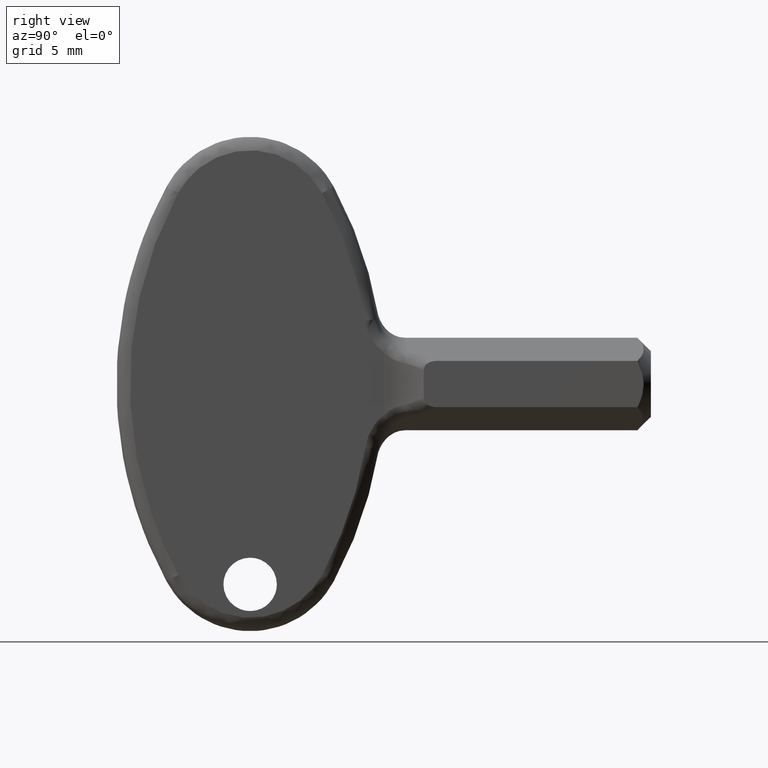
[diagram: clean part render]
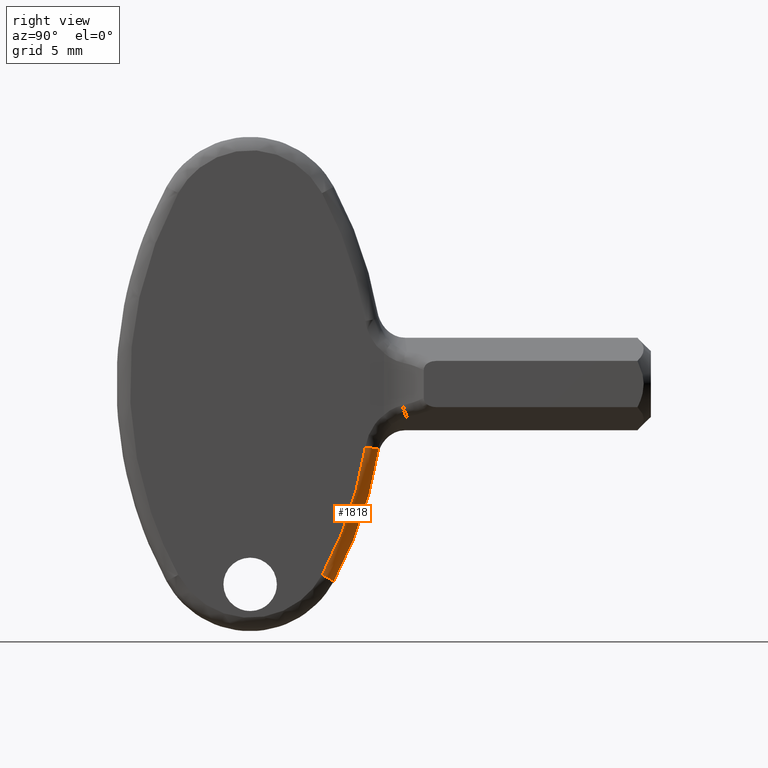
[diagram: same view with one face highlighted and labeled with its STEP entity id]
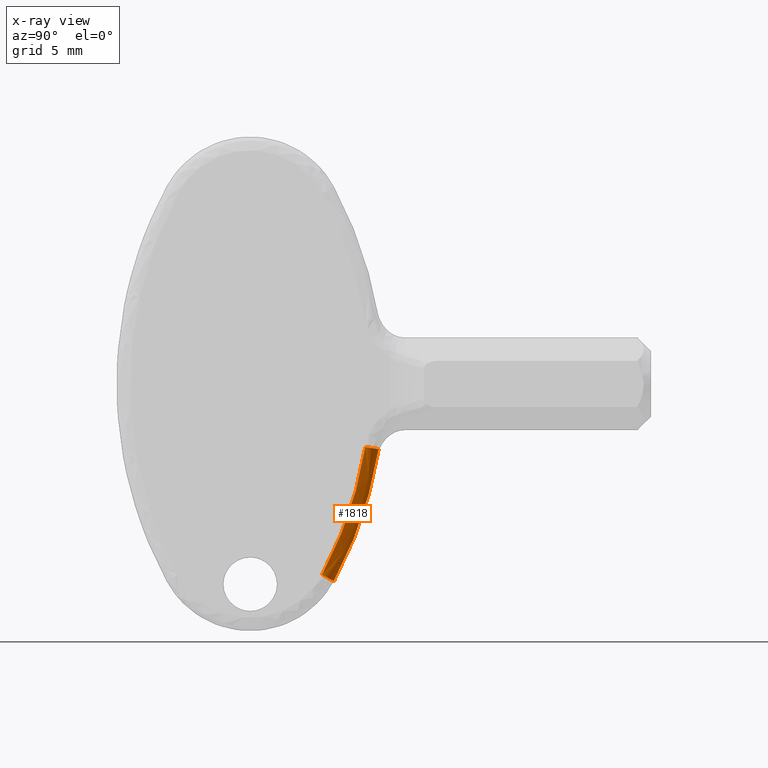
[diagram: x-ray of the same camera — body ghosted, the highlighted face saturated]
A machine part, right view. The second image highlights one B-rep face of the part: STEP entity #1818.
The next image is the same camera in x-ray: the body ghosted, the highlighted face saturated — about 0% of this face is hidden behind the body in this view.
In plain terms, the highlighted face is a freeform B-spline surface patch.
Its self-contained STEP definition (entity closure, byte-faithful):
#1587=CARTESIAN_POINT('',(2.0,-47.588481033140702,-4.724404154808280));
#1588=VERTEX_POINT('',#1587);
#1589=CARTESIAN_POINT('',(1.0,-46.600916721042900,-4.881619705790590));
#1590=VERTEX_POINT('',#1589);
#1591=CARTESIAN_POINT('',(2.0,-47.588481033140702,-4.724404154808280));
#1592=CARTESIAN_POINT('',(2.000056664775542,-47.483441953268184,-4.741125877752842));
#1593=CARTESIAN_POINT('',(1.972321122622983,-47.313813241214412,-4.768129963564021));
#1594=CARTESIAN_POINT('',(1.862392552110623,-47.068871650792588,-4.807123502136568));
#1595=CARTESIAN_POINT('',(1.725028937682964,-46.895034466443683,-4.834797556761474));
#1596=CARTESIAN_POINT('',(1.545493000254134,-46.753172186877592,-4.857381358314862));
#1597=CARTESIAN_POINT('',(1.319007473508686,-46.637078628337839,-4.875862901792790));
#1598=CARTESIAN_POINT('',(1.122735010022933,-46.600808676386123,-4.881636905987126));
#1599=CARTESIAN_POINT('',(1.0,-46.600916721042900,-4.881619705790590));
#1600=B_SPLINE_CURVE_WITH_KNOTS('',3,(#1591,#1592,#1593,#1594,#1595,#1596,#1597,#1598,#1599),.UNSPECIFIED.,.F.,.U.,(4,1,1,1,1,1,4),(0.000000086227765,0.319071751746805,0.515431106913185,0.809950586004794,0.981761028885563,1.202671843957084,1.570835744339513),.UNSPECIFIED.);
#1601=EDGE_CURVE('',#1588,#1590,#1600,.T.);
#1764=CARTESIAN_POINT('',(1.997579303995035,-47.582257776983226,-4.216173179877054));
#1765=CARTESIAN_POINT('',(1.997579303995035,-48.373937058046501,-9.789815639359071));
#1766=CARTESIAN_POINT('',(1.997579303995035,-51.133562231438972,-14.696618595723240));
#1767=CARTESIAN_POINT('',(2.077538171263894,-46.446581598106036,-4.377484442188943));
#1768=CARTESIAN_POINT('',(2.077538171263895,-47.268550797532249,-10.164376356494540));
#1769=CARTESIAN_POINT('',(2.077538171263895,-50.133760167977456,-15.258915261653069));
#1770=CARTESIAN_POINT('',(0.930462822287009,-46.525744944778062,-4.366240093123596));
#1771=CARTESIAN_POINT('',(0.930462822287008,-47.345602757743379,-10.138267259155164));
#1772=CARTESIAN_POINT('',(0.930462822287009,-50.203452285171856,-15.219719858310610));
#1780=(BOUNDED_SURFACE()B_SPLINE_SURFACE(2,2,((#1764,#1767,#1770),(#1765,#1768,#1771),(#1766,#1769,#1772)),.UNSPECIFIED.,.F.,.F.,.U.)B_SPLINE_SURFACE_WITH_KNOTS((3,3),(3,3),(8.952895431756973,20.502429694890971),(0.208867369347811,2.031242431944609),.UNSPECIFIED.)GEOMETRIC_REPRESENTATION_ITEM()RATIONAL_B_SPLINE_SURFACE(((0.877762309362861,0.576009124844841,0.877761983198083),(0.862684020035958,0.566114382103322,0.862683699474071),(0.877759392361308,0.576007210636981,0.877759066197613)))REPRESENTATION_ITEM('')SURFACE());
#1781=CARTESIAN_POINT('',(2.0,-50.829547461018599,-14.289291123879160));
#1782=VERTEX_POINT('',#1781);
#1783=CARTESIAN_POINT('',(1.0,-49.949837753211099,-14.764802248869140));
#1784=VERTEX_POINT('',#1783);
#1785=CARTESIAN_POINT('',(2.0,-50.829547461018599,-14.289291123879160));
#1786=CARTESIAN_POINT('',(2.000022023980810,-50.757575302780857,-14.328194368469800));
#1787=CARTESIAN_POINT('',(1.980814229162001,-50.620839659908512,-14.402104339897130));
#1788=CARTESIAN_POINT('',(1.906254471994866,-50.444364950783587,-14.497494542737570));
#1789=CARTESIAN_POINT('',(1.794253010209090,-50.284466891653743,-14.583924538116200));
#1790=CARTESIAN_POINT('',(1.646484872305411,-50.147916379262853,-14.657734440620070));
#1791=CARTESIAN_POINT('',(1.439490437499293,-50.029438518897251,-14.721775498901820));
#1792=CARTESIAN_POINT('',(1.220895374624113,-49.963292697089628,-14.757529423023280));
#1793=CARTESIAN_POINT('',(1.065445256928368,-49.949833310603871,-14.764804650239270));
#1794=CARTESIAN_POINT('',(1.0,-49.949837753211099,-14.764802248869140));
#1795=B_SPLINE_CURVE_WITH_KNOTS('',3,(#1785,#1786,#1787,#1788,#1789,#1790,#1791,#1792,#1793,#1794),.UNSPECIFIED.,.F.,.U.,(4,1,1,1,1,1,1,4),(0.000000086227048,0.245438233014713,0.466346249764636,0.638155533366651,0.883581097985646,1.104489580802373,1.374492630737950,1.570835744339667),.UNSPECIFIED.);
#1796=EDGE_CURVE('',#1782,#1784,#1795,.T.);
#1797=ORIENTED_EDGE('',*,*,#1796,.T.);
#1798=CARTESIAN_POINT('',(1.0,-46.600916721042900,-4.881619705790590));
#1799=CARTESIAN_POINT('',(0.999999999999999,-46.884059680375643,-6.661341067373665));
#1800=CARTESIAN_POINT('',(1.000000000000004,-47.735097013665602,-10.064769288157310));
#1801=CARTESIAN_POINT('',(0.999999999999997,-49.144735846264851,-13.275618717411669));
#1802=CARTESIAN_POINT('',(1.0,-49.949837753211099,-14.764802248869140));
#1803=B_SPLINE_CURVE_WITH_KNOTS('',3,(#1798,#1799,#1800,#1801,#1802),.UNSPECIFIED.,.F.,.U.,(4,1,4),(3.270308E-010,5.406283876398704,10.484915241085140),.UNSPECIFIED.);
#1804=EDGE_CURVE('',#1590,#1784,#1803,.T.);
#1805=ORIENTED_EDGE('',*,*,#1804,.F.);
#1806=ORIENTED_EDGE('',*,*,#1601,.F.);
#1807=CARTESIAN_POINT('',(2.0,-50.829547461018599,-14.289291123879160));
#1808=CARTESIAN_POINT('',(2.000000000000002,-50.276639270688463,-13.266463829143570));
#1809=CARTESIAN_POINT('',(1.999999999999999,-49.424374724576332,-11.444231078498380));
#1810=CARTESIAN_POINT('',(2.0,-48.304114498883372,-8.249528304633536));
#1811=CARTESIAN_POINT('',(2.0,-47.804452580142083,-6.081433785334997));
#1812=CARTESIAN_POINT('',(2.0,-47.588481033140702,-4.724404154808280));
#1813=B_SPLINE_CURVE_WITH_KNOTS('',3,(#1807,#1808,#1809,#1810,#1811,#1812),.UNSPECIFIED.,.F.,.U.,(4,1,1,4),(3.165592E-010,3.488115430045304,6.024922181276704,10.147240397929730),.UNSPECIFIED.);
#1814=EDGE_CURVE('',#1782,#1588,#1813,.T.);
#1815=ORIENTED_EDGE('',*,*,#1814,.F.);
#1816=EDGE_LOOP('',(#1797,#1805,#1806,#1815));
#1817=FACE_OUTER_BOUND('',#1816,.T.);
#1818=ADVANCED_FACE('',(#1817),#1780,.T.);